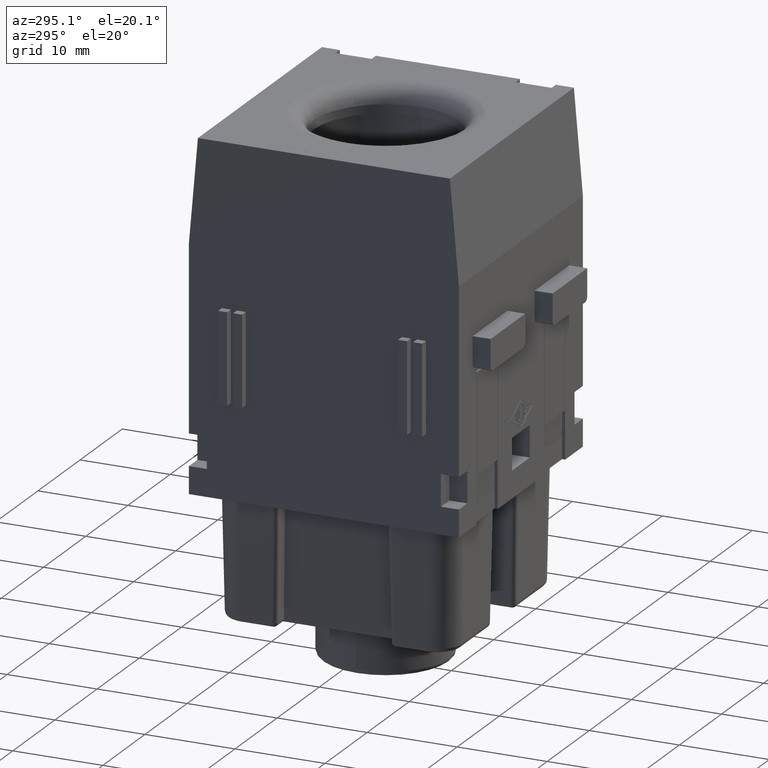
[diagram: clean part render]
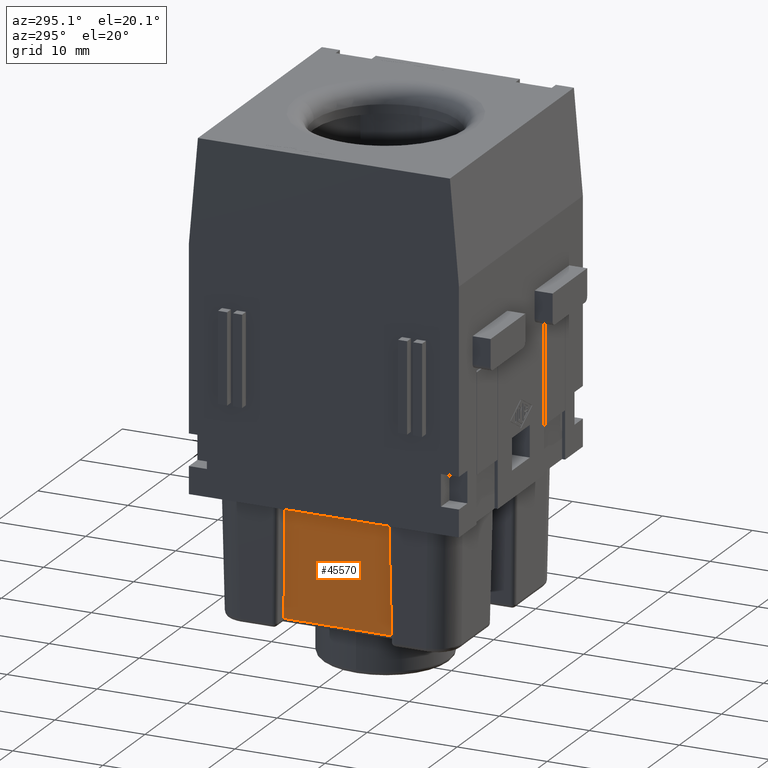
[diagram: same view with one face highlighted and labeled with its STEP entity id]
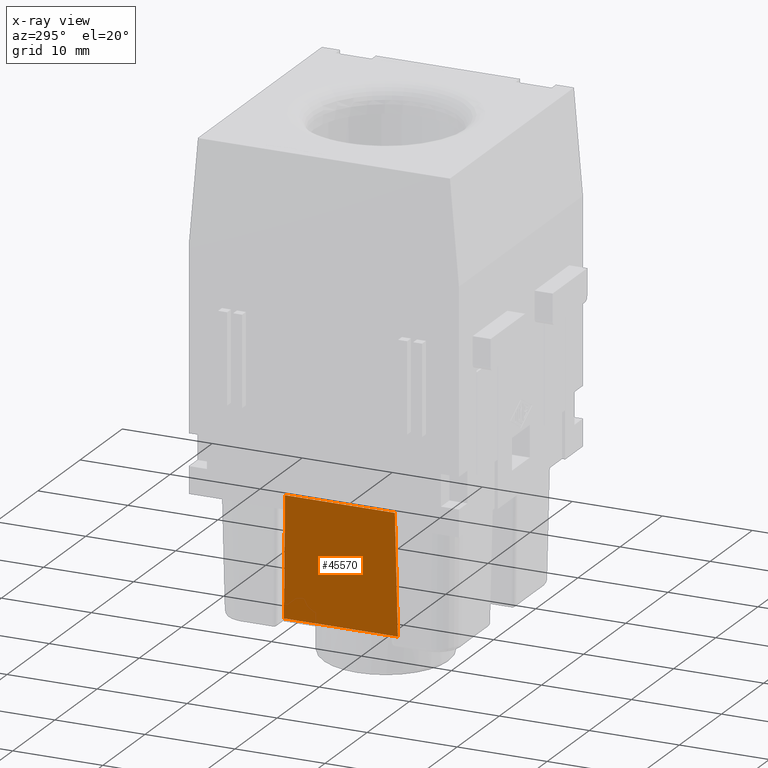
[diagram: x-ray of the same camera — body ghosted, the highlighted face saturated]
A machine part, auxiliary view. The second image highlights one B-rep face of the part: STEP entity #45570.
The next image is the same camera in x-ray: the body ghosted, the highlighted face saturated — about 0% of this face is hidden behind the body in this view.
In plain terms, the highlighted planar face has unit normal (-0.9998, -0, -0.0175).
Its self-contained STEP definition (entity closure, byte-faithful):
#29740=CARTESIAN_POINT('',(52.015430320011,44.4484567967814,
-23.3323046799891));
#29750=VERTEX_POINT('',#29740);
#41120=CARTESIAN_POINT('',(52.015430320011,44.4484567967814,
-10.667695320011));
#41130=VERTEX_POINT('',#41120);
#41160=CARTESIAN_POINT('',(52.015430320011,44.4484567967814,
-4.55868960884608));
#41170=DIRECTION('',(-4.39461892278382E-17,-1.11022302462516E-16,1.));
#41180=VECTOR('',#41170,1.);
#41190=LINE('',#41160,#41180);
#41200=EDGE_CURVE('',#29750,#41130,#41190,.T.);
#45270=CARTESIAN_POINT('',(52.247735,57.757183,-20.6119633133112));
#45280=DIRECTION('',(0.999847695156391,-0.0174524064372835,
4.20018896641818E-17));
#45290=DIRECTION('',(4.39394960103606E-17,1.10638848290041E-16,-1.));
#45300=AXIS2_PLACEMENT_3D('',#45270,#45280,#45290);
#45310=PLANE('',#45300);
#45320=CARTESIAN_POINT('',(52.2529715194785,58.057183,-23.0947634805215)
);
#45330=DIRECTION('',(-0.0174497491606827,-0.999695459881888,
-0.0174497491606828));
#45340=VECTOR('',#45330,1.);
#45350=LINE('',#45320,#45340);
#45360=CARTESIAN_POINT('',(52.247735,57.757183,-23.1));
#45370=VERTEX_POINT('',#45360);
#45380=EDGE_CURVE('',#45370,#29750,#45350,.T.);
#45390=ORIENTED_EDGE('',*,*,#45380,.F.);
#45400=ORIENTED_EDGE('',*,*,#41200,.F.);
#45410=CARTESIAN_POINT('',(52.2529715194785,58.057183,-10.9052365194785)
);
#45420=DIRECTION('',(-0.0174497491606827,-0.999695459881888,
0.0174497491606826));
#45430=VECTOR('',#45420,1.);
#45440=LINE('',#45410,#45430);
#45450=CARTESIAN_POINT('',(52.247735,57.757183,-10.9));
#45460=VERTEX_POINT('',#45450);
#45470=EDGE_CURVE('',#45460,#41130,#45440,.T.);
#45480=ORIENTED_EDGE('',*,*,#45470,.T.);
#45490=CARTESIAN_POINT('',(52.247735,57.757183,-4.55868960884607));
#45500=DIRECTION('',(0.,-1.11022302462516E-16,1.));
#45510=VECTOR('',#45500,1.);
#45520=LINE('',#45490,#45510);
#45530=EDGE_CURVE('',#45370,#45460,#45520,.T.);
#45540=ORIENTED_EDGE('',*,*,#45530,.T.);
#45550=EDGE_LOOP('',(#45540,#45480,#45400,#45390));
#45560=FACE_OUTER_BOUND('',#45550,.T.);
#45570=ADVANCED_FACE('',(#45560),#45310,.T.);